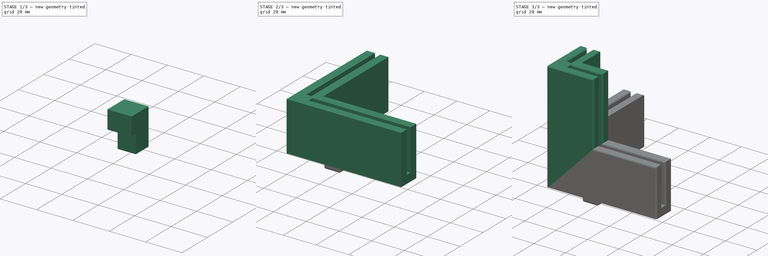
[diagram: build sequence overview — one tinted view per stage of 3, left to right]
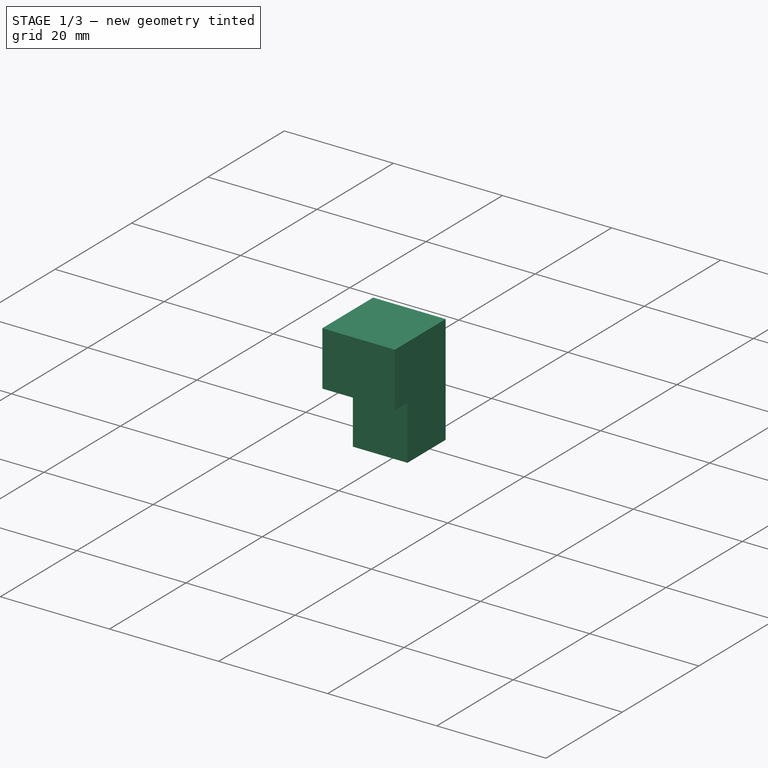
[diagram: stage 1 of 3 — iso view after this stage's code; geometry added in this stage tinted green]
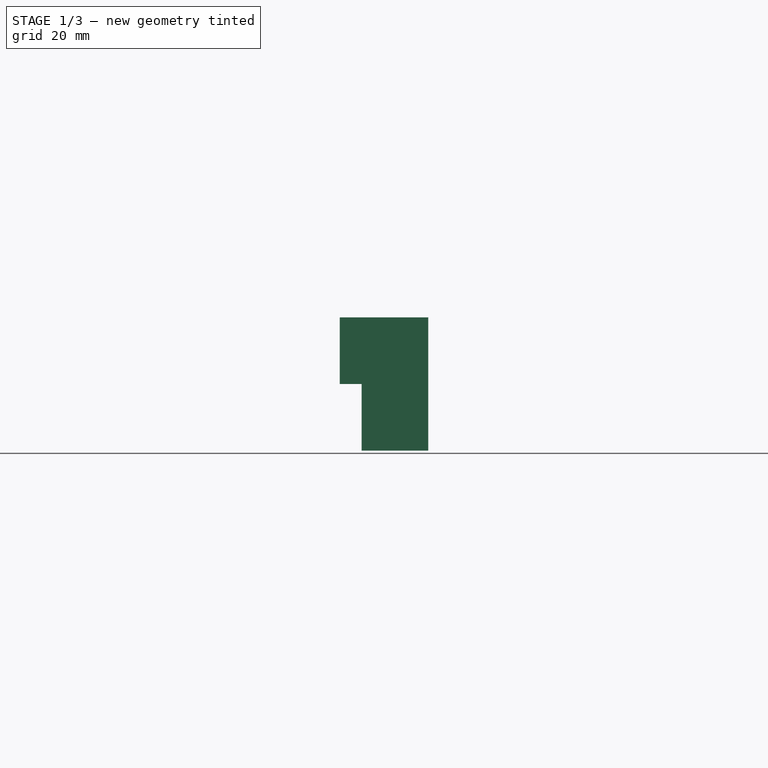
[diagram: stage 1 of 3 — front view after this stage's code; geometry added in this stage tinted green]
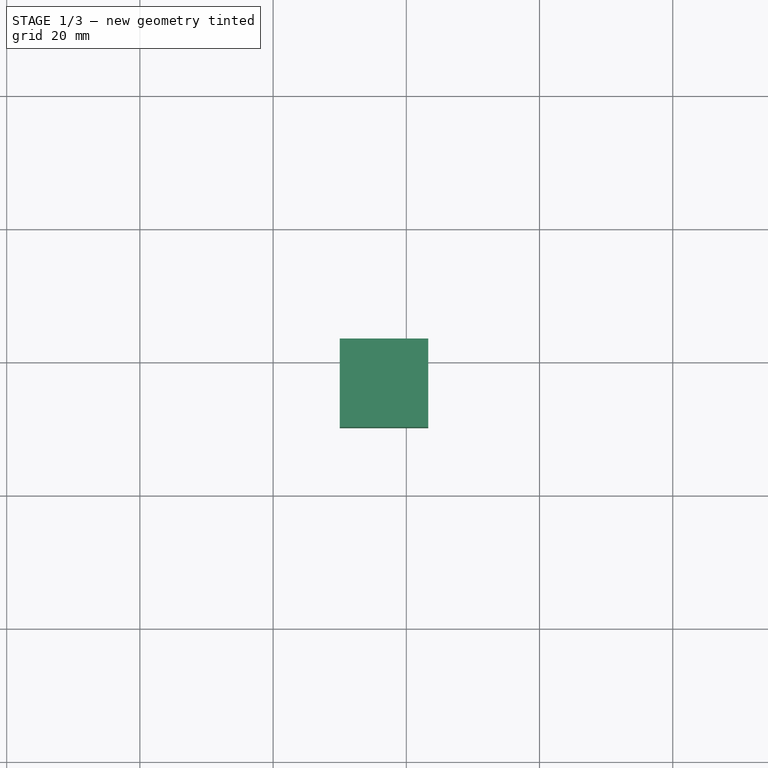
[diagram: stage 1 of 3 — top view after this stage's code; geometry added in this stage tinted green]
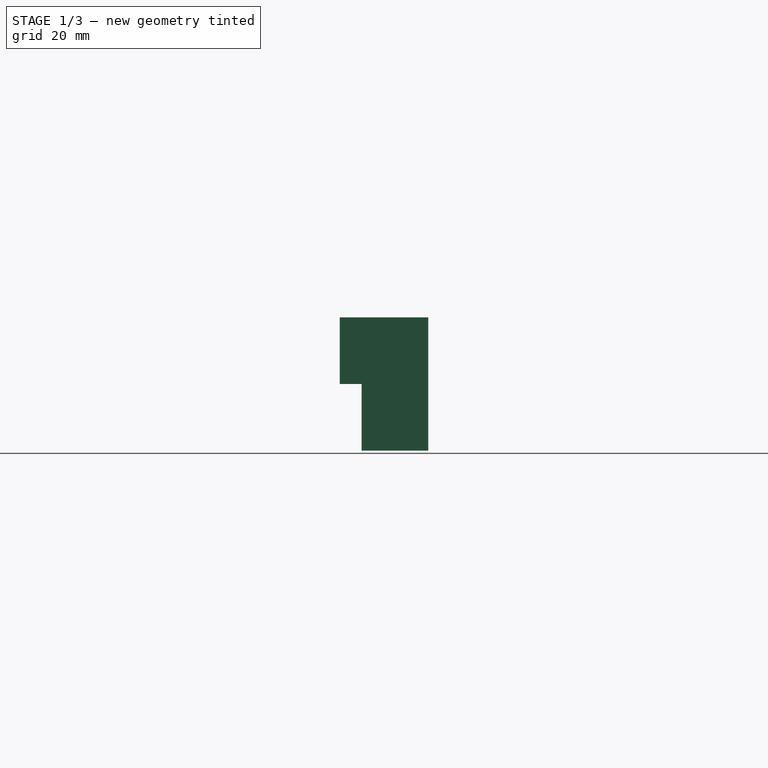
[diagram: stage 1 of 3 — right view after this stage's code; geometry added in this stage tinted green]
FCSTD DOCUMENT  (FreeCAD 1.0R39319 (Git))
Label: corner-v2-1
License: All rights reserved
LicenseURL: https://en.wikipedia.org/wiki/All_rights_reserved
objects: Sketcher::SketchObject×5, PartDesign::Pad×5, PartDesign::Fillet×2, PartDesign::Body×2, PartDesign::Plane×1
note: 34 computed .brp shape members not serialized (recipe doc carries the construction recipe); baked Part::Feature solids carry a one-line shape summary decoded from their .brp

FEATURE [PartDesign::Body] Body
  AllowCompound = false
  Group = -> [Sketch,Pad,DatumPlane,Sketch001,Pad001,Sketch002,Pad002,Fillet]
  Origin = -> Origin
  Tip = -> Fillet
FEATURE [Sketcher::SketchObject] Sketch003
  ArcFitTolerance = 1e-06
  AttachmentSupport = -> [XY_Plane001]
  FullyConstrained = true
  MakeInternals = false
  MapMode = 5
  sketch-geometry (4):
    g0: LineSegment StartX=10 StartY=10 StartZ=0 EndX=23.3 EndY=10 EndZ=0
    g1: LineSegment StartX=23.3 StartY=10 StartZ=0 EndX=23.3 EndY=23.3 EndZ=0
    g2: LineSegment StartX=23.3 StartY=23.3 StartZ=0 EndX=10 EndY=23.3 EndZ=0
    g3: LineSegment StartX=10 StartY=23.3 StartZ=0 EndX=10 EndY=10 EndZ=0
  constraints (12):
    c: Coincident(g0,g1)
    c: Coincident(g1,g2)
    c: Coincident(g2,g3)
    c: Coincident(g3,g0)
    c: Horizontal(g0)
    c: Horizontal(g2)
    c: Vertical(g1)
    c: Vertical(g3)
    c: Distance(g1,g3) = 13.3
    c: Distance(g0,g2) = 13.3
    c: DistanceX(g-1,g0) = 10
    c: DistanceY(g-1,g0) = 10
FEATURE [PartDesign::Pad] Pad003
  Direction = (0,0,1)
  Length = 10
  Length2 = 10
  Profile = -> Sketch003
  ReferenceAxis = -> Sketch003 [N_Axis]
  Refine = true
  Suppressed = false
  Type = 0
FEATURE [Sketcher::SketchObject] Sketch004
  ArcFitTolerance = 1e-06
  AttachmentSupport = -> [XY_Plane001]
  ExternalGeometry = -> [Pad003]
  FullyConstrained = true
  MakeInternals = false
  MapMode = 5
  sketch-geometry (4):
    g0: LineSegment StartX=23.3 StartY=23.3 StartZ=0 EndX=13.3 EndY=23.3 EndZ=0
    g1: LineSegment StartX=13.3 StartY=23.3 StartZ=0 EndX=13.3 EndY=13.3 EndZ=0
    g2: LineSegment StartX=13.3 StartY=13.3 StartZ=0 EndX=23.3 EndY=13.3 EndZ=0
    g3: LineSegment StartX=23.3 StartY=13.3 StartZ=0 EndX=23.3 EndY=23.3 EndZ=0
  constraints (11):
    c: Coincident(g0,g1)
    c: Coincident(g1,g2)
    c: Coincident(g2,g3)
    c: Coincident(g3,g0)
    c: Horizontal(g0)
    c: Horizontal(g2)
    c: Vertical(g1)
    c: Vertical(g3)
    c: Coincident(g0,g-4)
    c: DistanceY(g-1,g1) = 13.3
    c: DistanceX(g-1,g1) = 13.3
FEATURE [PartDesign::Pad] Pad004
  BaseFeature = -> Pad003
  Direction = (0,0,1)
  Length = 10
  Length2 = 10
  Profile = -> Sketch004
  ReferenceAxis = -> Sketch004 [N_Axis]
  Refine = true
  Reversed = true
  Suppressed = false
  Type = 0
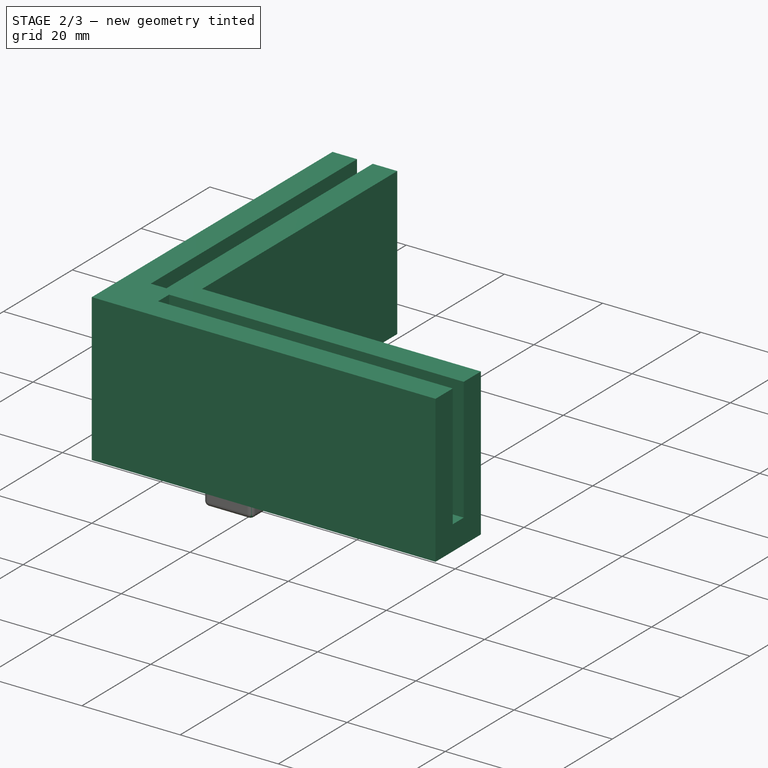
[diagram: stage 2 of 3 — iso view after this stage's code; geometry added in this stage tinted green]
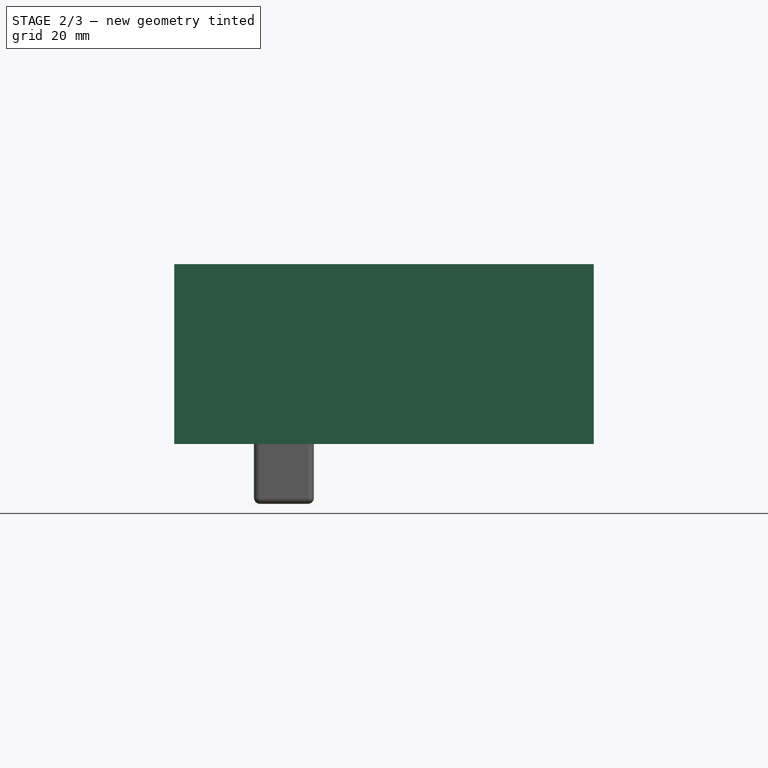
[diagram: stage 2 of 3 — front view after this stage's code; geometry added in this stage tinted green]
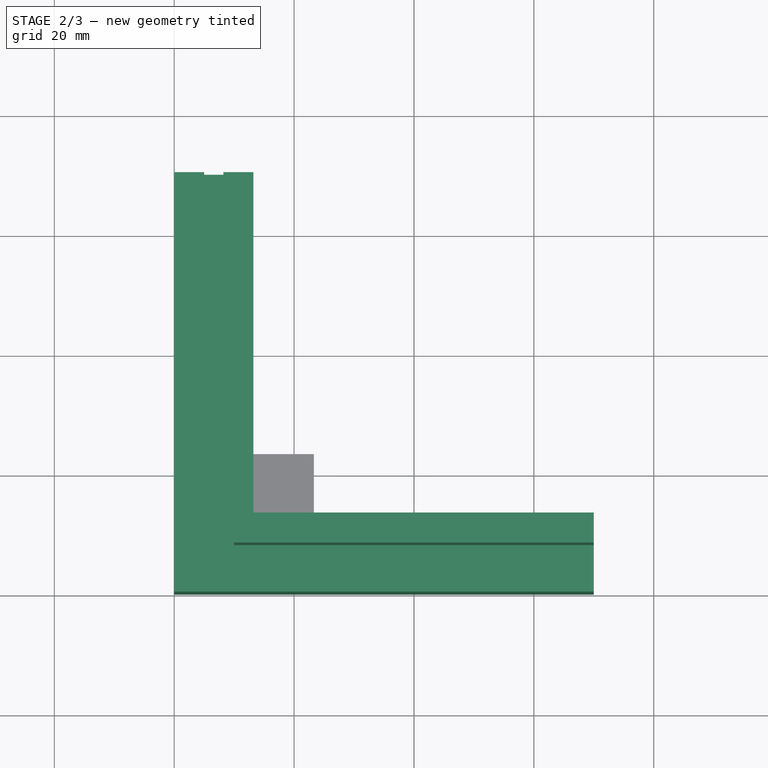
[diagram: stage 2 of 3 — top view after this stage's code; geometry added in this stage tinted green]
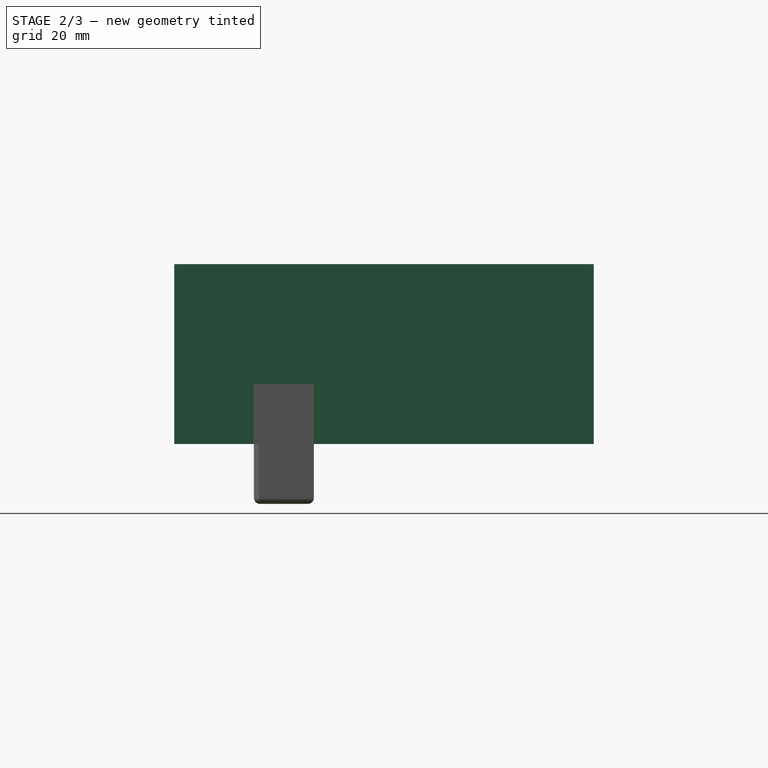
[diagram: stage 2 of 3 — right view after this stage's code; geometry added in this stage tinted green]
FEATURE [Sketcher::SketchObject] Sketch
  ArcFitTolerance = 1e-06
  AttachmentSupport = -> [XY_Plane]
  FullyConstrained = true
  MakeInternals = false
  MapMode = 5
  sketch-geometry (6):
    g0: LineSegment StartX=0 StartY=0 StartZ=0 EndX=70 EndY=-4e-15 EndZ=0
    g1: LineSegment StartX=70 StartY=-4e-15 StartZ=0 EndX=70 EndY=13.2 EndZ=0
    g2: LineSegment StartX=70 StartY=13.2 StartZ=0 EndX=13.2 EndY=13.2 EndZ=0
    g3: LineSegment StartX=13.2 StartY=13.2 StartZ=0 EndX=13.2 EndY=70 EndZ=0
    g4: LineSegment StartX=13.2 StartY=70 StartZ=0 EndX=3.6e-15 EndY=70 EndZ=0
    g5: LineSegment StartX=4.3e-15 StartY=70 StartZ=0 EndX=0 EndY=0 EndZ=0
  constraints (17):
    c: Coincident(g-1,g0)
    c: Coincident(g0,g1)
    c: Coincident(g1,g2)
    c: Coincident(g2,g3)
    c: Coincident(g3,g4)
    c: Coincident(g4,g5)
    c: Coincident(g5,g0)
    c: Angle(g0,g5) = 1.5708
    c: Angle(g2,g3) = 1.5708
    c: Angle(g2,g1) = 1.5708
    c: Angle(g1,g0) = 1.5708
    c: Angle(g4,g3) = 1.5708
    c: DistanceX(g4,g3) = 13.2
    c: DistanceY(g0,g1) = 13.2
    c: Angle(g-1,g5) = 1.5708
    c: DistanceX(g0,g0) = 70
    c: DistanceY(g0,g4) = 70
FEATURE [PartDesign::Pad] Pad
  Direction = (0,0,1)
  Length = 5
  Length2 = 10
  Profile = -> Sketch
  ReferenceAxis = -> Sketch [N_Axis]
  Refine = true
  Suppressed = false
  Type = 0
FEATURE [PartDesign::Plane] DatumPlane
  AttachmentSupport = -> [Pad]
  Length = 114
  MapMode = 5
  Placement = pos=(0,0,5) rot=(0,0,1;0rad)
  ResizeMode = 0
  Width = 114
FEATURE [Sketcher::SketchObject] Sketch001
  ArcFitTolerance = 1e-06
  AttachmentSupport = -> [DatumPlane]
  ExternalGeometry = -> [Pad]
  FullyConstrained = true
  MakeInternals = false
  MapMode = 5
  Placement = pos=(0,0,5) rot=(0,0,1;0rad)
  sketch-geometry (14):
    g0: LineSegment StartX=0 StartY=0 StartZ=0 EndX=70 EndY=-4e-15 EndZ=0
    g1: LineSegment StartX=70 StartY=-4e-15 StartZ=0 EndX=70 EndY=5 EndZ=0
    g2: LineSegment StartX=70 StartY=5 StartZ=0 EndX=10 EndY=5 EndZ=0
    g3: LineSegment StartX=5 StartY=10 StartZ=0 EndX=5 EndY=70 EndZ=0
    g4: LineSegment StartX=5 StartY=70 StartZ=0 EndX=4.4e-15 EndY=70 EndZ=0
    g5: LineSegment StartX=4.4e-15 StartY=70 StartZ=0 EndX=0 EndY=0 EndZ=0
    g6: LineSegment StartX=10 StartY=5 StartZ=0 EndX=10 EndY=8.2 EndZ=0
    g7: LineSegment StartX=8.2 StartY=10 StartZ=0 EndX=5 EndY=10 EndZ=0
    g8: LineSegment StartX=13.2 StartY=70 StartZ=0 EndX=8.2 EndY=70 EndZ=0
    g9: LineSegment StartX=8.2 StartY=70 StartZ=0 EndX=8.2 EndY=10 EndZ=0
    g10: LineSegment StartX=10 StartY=8.2 StartZ=0 EndX=70 EndY=8.2 EndZ=0
    g11: LineSegment StartX=70 StartY=8.2 StartZ=0 EndX=70 EndY=13.2 EndZ=0
    g12: LineSegment StartX=70 StartY=13.2 StartZ=0 EndX=13.2 EndY=13.2 EndZ=0
    g13: LineSegment StartX=13.2 StartY=13.2 StartZ=0 EndX=13.2 EndY=70 EndZ=0
  constraints (36):
    c: Coincident(g-1,g0)
    c: Coincident(g0,g-8)
    c: Coincident(g0,g1)
    c: PointOnObject(g1,g-3)
    c: Coincident(g1,g2)
    c: Horizontal(g2)
    c: PointOnObject(g3,g-5)
    c: Vertical(g3)
    c: Coincident(g3,g4)
    c: Coincident(g4,g-7)
    c: Coincident(g4,g5)
    c: Coincident(g5,g0)
    c: DistanceX(g4,g3) = 5
    c: DistanceY(g0,g1) = 5
    c: Vertical(g6)
    c: Horizontal(g7)
    c: Coincident(g2,g6)
    c: Coincident(g3,g7)
    c: Coincident(g-6,g8)
    c: PointOnObject(g8,g-5)
    c: Coincident(g8,g9)
    c: Vertical(g9)
    c: PointOnObject(g10,g-3)
    c: Horizontal(g10)
    c: Coincident(g10,g11)
    c: Coincident(g11,g-4)
    c: Coincident(g11,g12)
    c: Coincident(g12,g-6)
    c: Coincident(g12,g13)
    c: Coincident(g13,g8)
    c: DistanceY(g10,g11) = 5
    c: DistanceX(g8,g8) = 5
    c: Coincident(g10,g6)
    c: Coincident(g9,g7)
    c: DistanceX(g0,g2) = 10
    c: DistanceY(g0,g3) = 10
FEATURE [PartDesign::Pad] Pad001
  BaseFeature = -> Pad
  Direction = (0,0,1)
  Length = 25
  Length2 = 10
  Profile = -> Sketch001
  ReferenceAxis = -> Sketch001 [N_Axis]
  Refine = true
  Suppressed = false
  Type = 0
FEATURE [PartDesign::Fillet] Fillet001
  Base = -> Pad004 [Edge15,Edge14,Face7,Edge17]
  BaseFeature = -> Pad004
  Radius = 1
  Refine = true
  SupportTransform = false
  Suppressed = false
  UseAllEdges = false
FEATURE [PartDesign::Body] Body001
  AllowCompound = false
  Group = -> [Sketch003,Pad003,Sketch004,Pad004,Fillet001]
  Origin = -> Origin001
  Tip = -> Fillet001
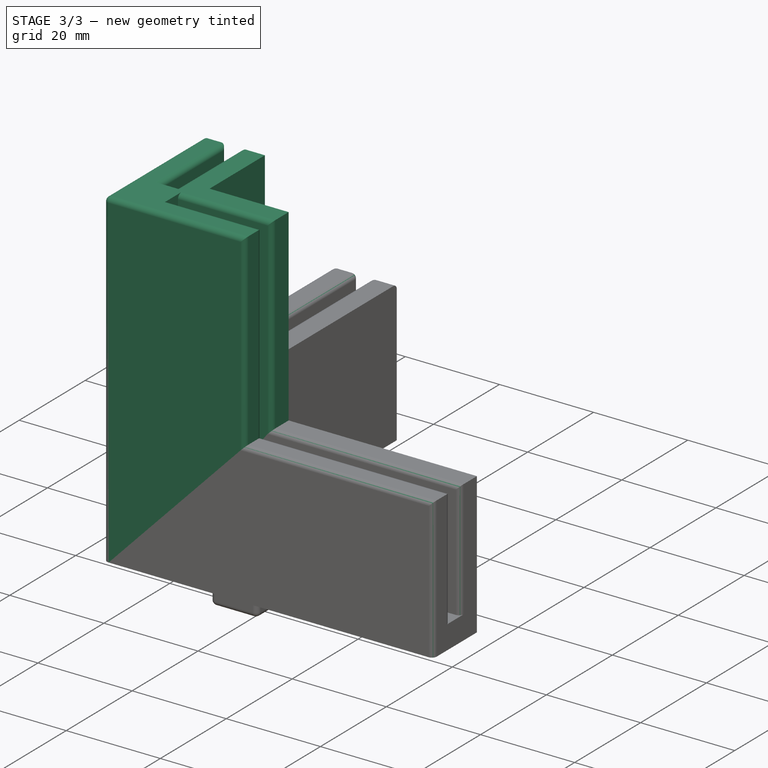
[diagram: stage 3 of 3 — iso view after this stage's code; geometry added in this stage tinted green]
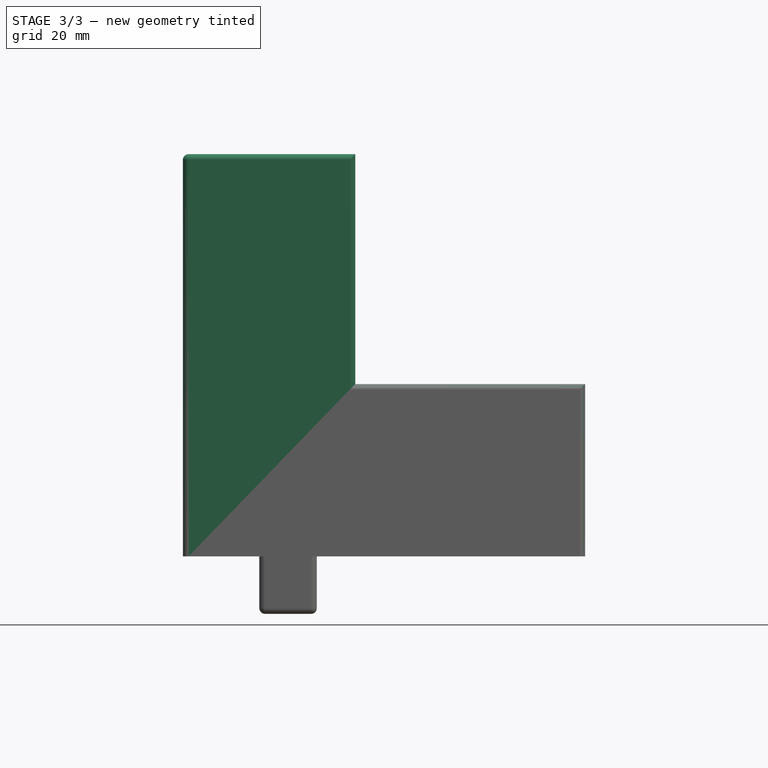
[diagram: stage 3 of 3 — front view after this stage's code; geometry added in this stage tinted green]
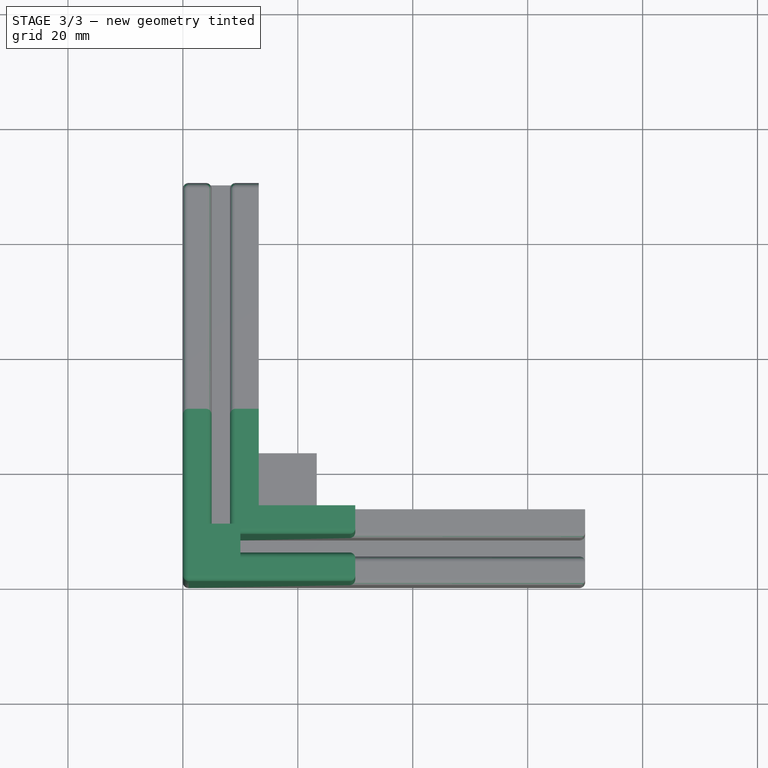
[diagram: stage 3 of 3 — top view after this stage's code; geometry added in this stage tinted green]
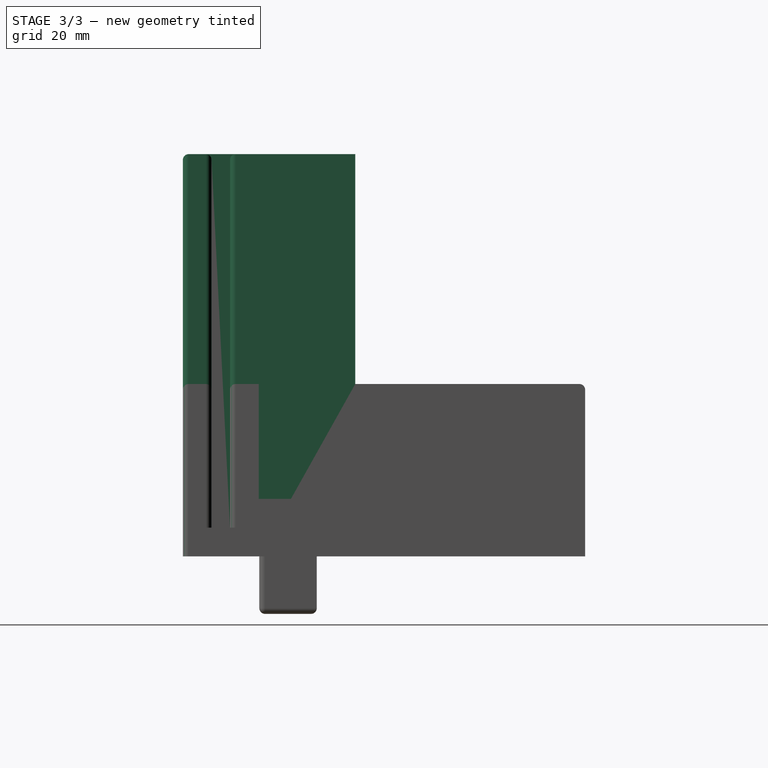
[diagram: stage 3 of 3 — right view after this stage's code; geometry added in this stage tinted green]
FEATURE [Sketcher::SketchObject] Sketch002
  ArcFitTolerance = 1e-06
  AttachmentSupport = -> [DatumPlane]
  ExternalGeometry = -> [Pad001]
  FullyConstrained = true
  MakeInternals = false
  MapMode = 5
  Placement = pos=(0,0,5) rot=(0,0,1;0rad)
  sketch-geometry (14):
    g0: LineSegment StartX=0 StartY=0 StartZ=0 EndX=30 EndY=-1.7e-15 EndZ=0
    g1: LineSegment StartX=30 StartY=-1.7e-15 StartZ=0 EndX=30 EndY=5 EndZ=0
    g2: LineSegment StartX=30 StartY=5 StartZ=0 EndX=10 EndY=5 EndZ=0
    g3: LineSegment StartX=10 StartY=5 StartZ=0 EndX=10 EndY=8.2 EndZ=0
    g4: LineSegment StartX=10 StartY=8.2 StartZ=0 EndX=30 EndY=8.2 EndZ=0
    g5: LineSegment StartX=30 StartY=8.2 StartZ=0 EndX=30 EndY=13.2 EndZ=0
    g6: LineSegment StartX=30 StartY=13.2 StartZ=0 EndX=13.2 EndY=13.2 EndZ=0
    g7: LineSegment StartX=13.2 StartY=13.2 StartZ=0 EndX=13.2 EndY=30 EndZ=0
    g8: LineSegment StartX=13.2 StartY=30 StartZ=0 EndX=8.2 EndY=30 EndZ=0
    g9: LineSegment StartX=8.2 StartY=30 StartZ=0 EndX=8.2 EndY=10 EndZ=0
    g10: LineSegment StartX=8.2 StartY=10 StartZ=0 EndX=5 EndY=10 EndZ=0
    g11: LineSegment StartX=5 StartY=10 StartZ=0 EndX=5 EndY=30 EndZ=0
    g12: LineSegment StartX=5 StartY=30 StartZ=0 EndX=1.8e-15 EndY=30 EndZ=0
    g13: LineSegment StartX=1.8e-15 StartY=30 StartZ=0 EndX=0 EndY=0 EndZ=0
  constraints (36):
    c: Coincident(g-1,g0)
    c: PointOnObject(g0,g-3)
    c: Coincident(g0,g1)
    c: PointOnObject(g1,g-10)
    c: Vertical(g1)
    c: Coincident(g1,g2)
    c: Coincident(g2,g-11)
    c: Coincident(g2,g3)
    c: Coincident(g3,g-12)
    c: Coincident(g3,g4)
    c: PointOnObject(g4,g-12)
    c: Coincident(g4,g5)
    c: PointOnObject(g5,g-7)
    c: Vertical(g5)
    c: Coincident(g5,g6)
    c: Coincident(g6,g-8)
    c: Coincident(g6,g7)
    c: PointOnObject(g7,g-8)
    c: Coincident(g7,g8)
    c: PointOnObject(g8,g-13)
    c: Horizontal(g8)
    c: Coincident(g8,g9)
    c: Coincident(g9,g-14)
    c: Coincident(g9,g10)
    c: Coincident(g10,g-15)
    c: Coincident(g10,g11)
    c: PointOnObject(g11,g-15)
    c: Coincident(g11,g12)
    c: PointOnObject(g12,g-17)
    c: Horizontal(g12)
    c: Coincident(g12,g13)
    c: Coincident(g13,g0)
    c: DistanceX(g0,g0) = 30
    c: DistanceX(g0,g4) = 30
    c: DistanceY(g0,g12) = 30
    c: DistanceY(g0,g8) = 30
FEATURE [PartDesign::Pad] Pad002
  BaseFeature = -> Pad001
  Direction = (0,0,1)
  Length = 65
  Length2 = 10
  Profile = -> Sketch002
  ReferenceAxis = -> Sketch002 [N_Axis]
  Refine = true
  Suppressed = false
  Type = 0
FEATURE [PartDesign::Fillet] Fillet
  Base = -> Pad002 [Edge15,Edge19,Edge18,Edge16,Edge34,Edge30,Edge14,Edge33,Edge48,Edge50,Edge45,Edge60,Edge59,Edge57,Edge51,Edge52,Edge54,Edge44,Edge26,Edge22,Edge39,Edge41,Edge23,Edge7,Edge12,Edge10,Edge61]
  BaseFeature = -> Pad002
  Radius = 1
  Refine = true
  SupportTransform = false
  Suppressed = false
  UseAllEdges = false
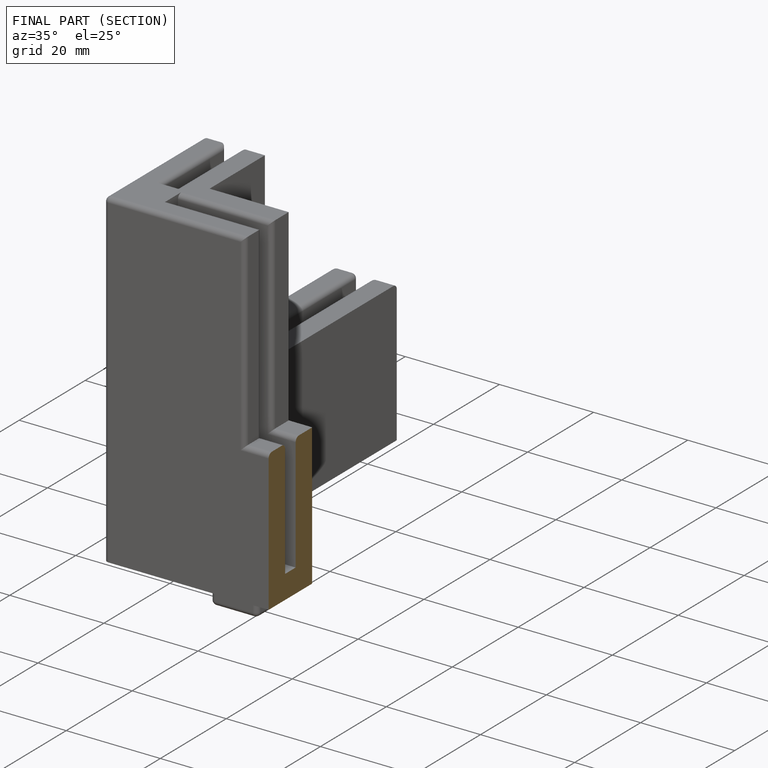
[diagram: finished part — half-section view (interior)]
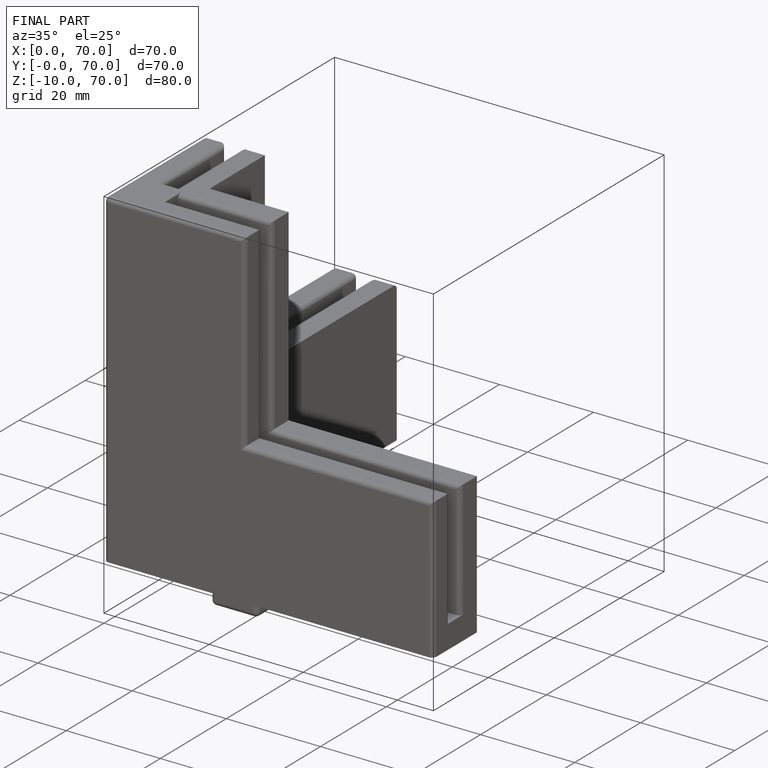
[diagram: finished part — iso view with bounding-box wireframe]
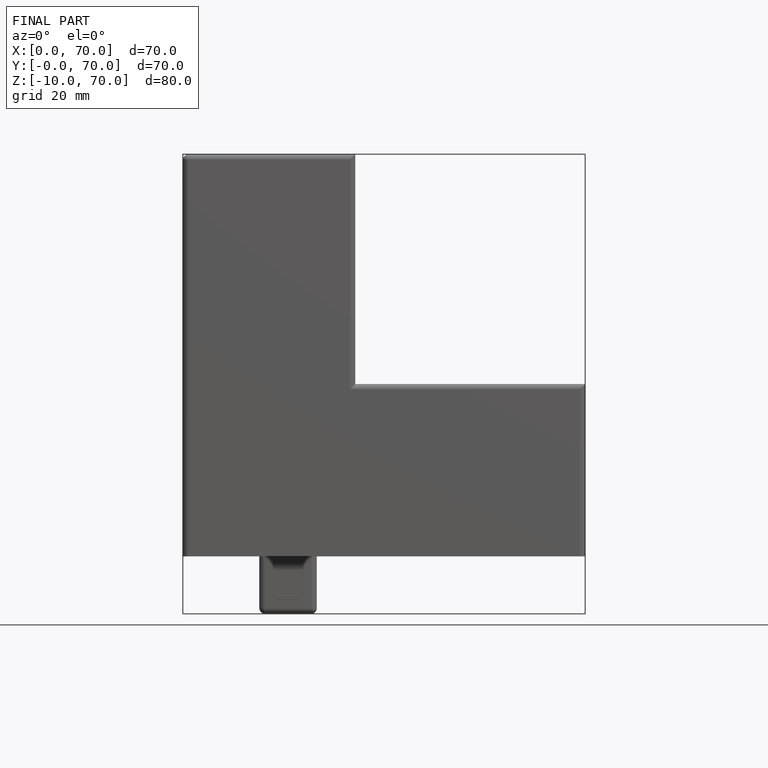
[diagram: finished part — front view with bounding-box wireframe]
